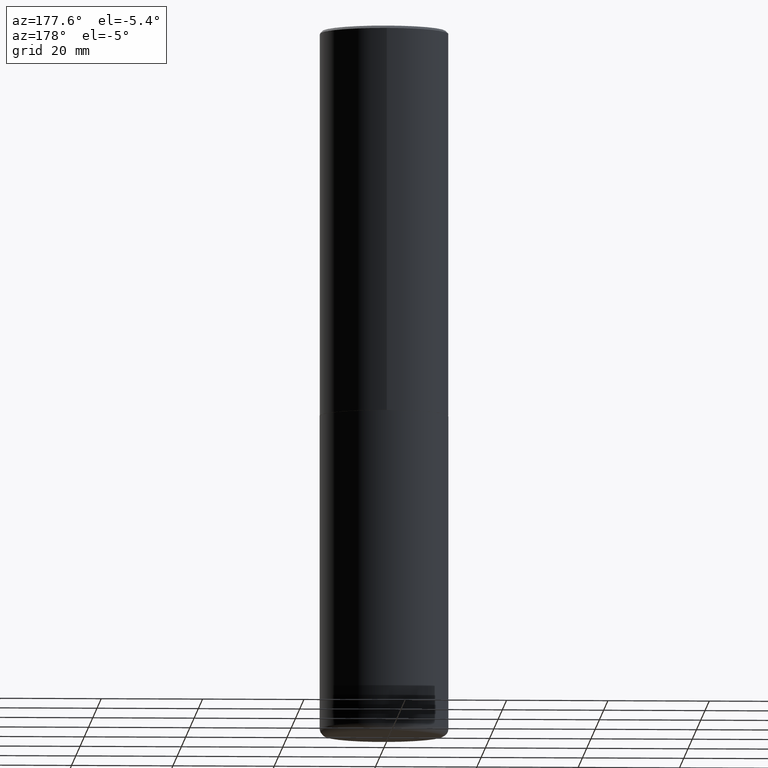
[diagram: clean part render]
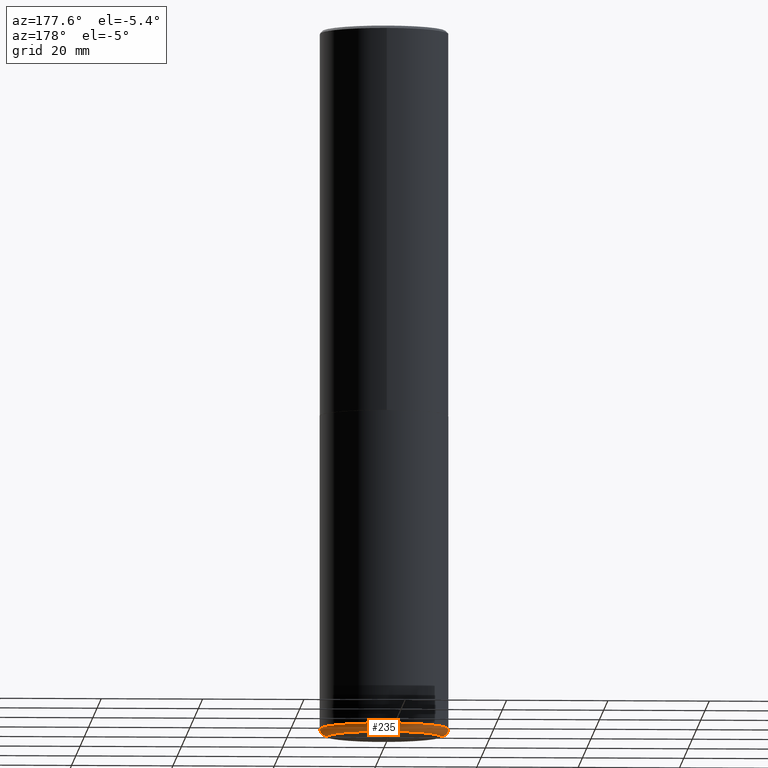
[diagram: same view with one face highlighted and labeled with its STEP entity id]
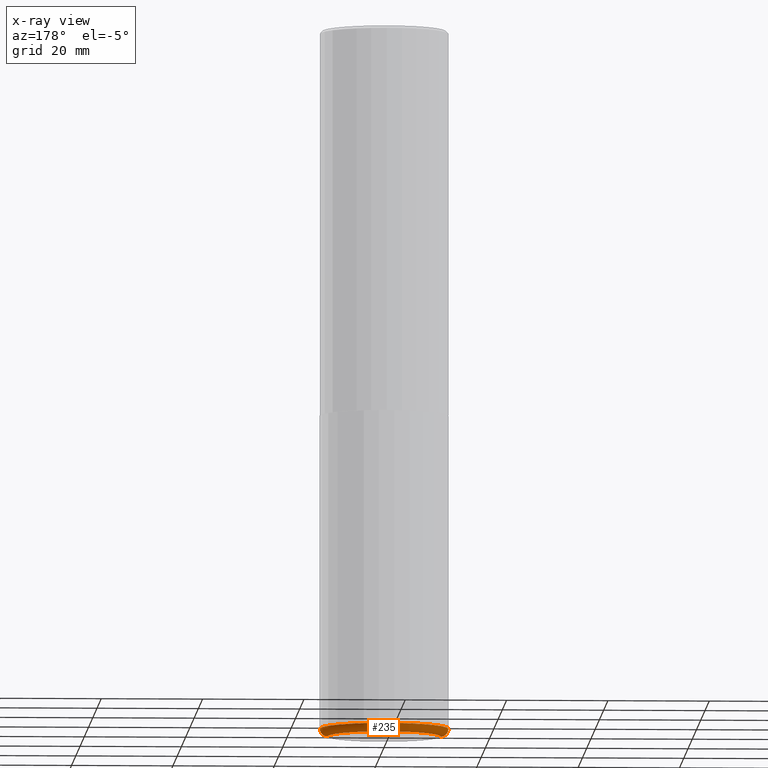
[diagram: x-ray of the same camera — body ghosted, the highlighted face saturated]
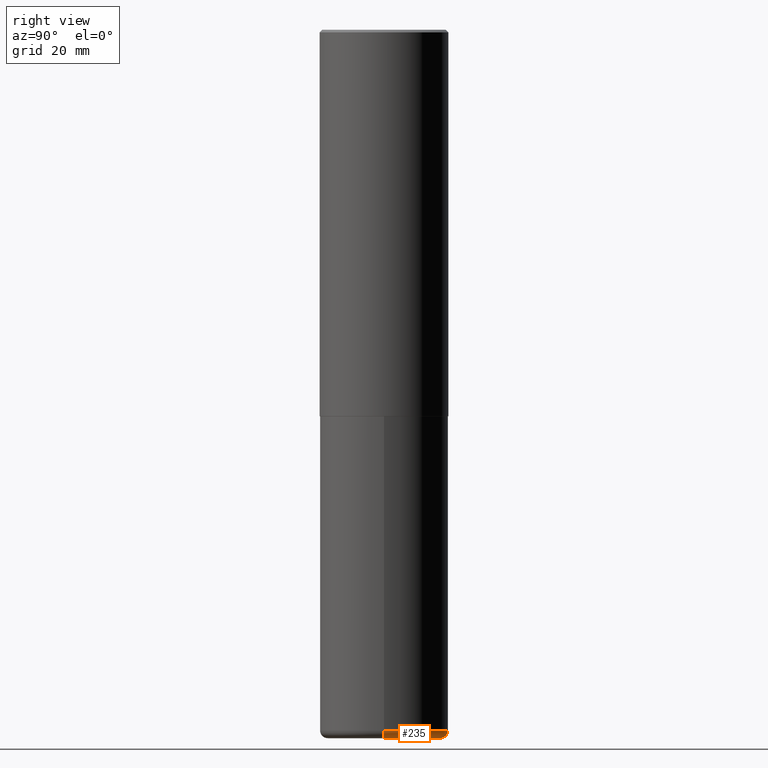
[diagram: same view with one face highlighted and labeled with its STEP entity id]
A machine part, auxiliary view. The second image highlights one B-rep face of the part: STEP entity #235.
The next image is the same camera in x-ray: the body ghosted, the highlighted face saturated — about 0% of this face is hidden behind the body in this view.
A second angle (right view) of the same face is appended — the face is thin or edge-on in the first view.
In plain terms, the highlighted toroidal blend (fillet) surface has major radius 11.176 mm and minor (blend) radius 1.524 mm.
Its self-contained STEP definition (entity closure, byte-faithful):
#6 = CIRCLE ( 'NONE', #68, 0.4400000000000000022 ) ;
#27 = EDGE_LOOP ( 'NONE', ( #90, #146, #282, #215 ) ) ;
#54 = AXIS2_PLACEMENT_3D ( 'NONE', #263, #170, #118 ) ;
#68 = AXIS2_PLACEMENT_3D ( 'NONE', #157, #251, #132 ) ;
#69 = TOROIDAL_SURFACE ( 'NONE', #391, 0.4400000000000000022, 0.06000000000000051820 ) ;
#83 = EDGE_CURVE ( 'NONE', #112, #336, #6, .T. ) ;
#86 = CARTESIAN_POINT ( 'NONE',  ( -0.4400000000000000022, -1.586727044596227254E-14, -5.439999999999999503 ) ) ;
#90 = ORIENTED_EDGE ( 'NONE', *, *, #83, .T. ) ;
#96 = CIRCLE ( 'NONE', #362, 0.06000000000000051820 ) ;
#105 = EDGE_CURVE ( 'NONE', #336, #370, #96, .T. ) ;
#109 = DIRECTION ( 'NONE',  ( -1.000000000000000000, 7.105427357600994759E-15, 0.000000000000000000 ) ) ;
#112 = VERTEX_POINT ( 'NONE', #338 ) ;
#118 = DIRECTION ( 'NONE',  ( 1.000000000000000000, -6.982962677686273021E-15, 0.000000000000000000 ) ) ;
#132 = DIRECTION ( 'NONE',  ( 1.000000000000000000, -6.982962677686270655E-15, 0.000000000000000000 ) ) ;
#142 = DIRECTION ( 'NONE',  ( 1.000000000000000000, -6.982962677686269077E-15, 0.000000000000000000 ) ) ;
#146 = ORIENTED_EDGE ( 'NONE', *, *, #105, .T. ) ;
#154 = CARTESIAN_POINT ( 'NONE',  ( 1.330335030564714425E-28, -1.899365848330671298E-14, -5.439999999999999503 ) ) ;
#157 = CARTESIAN_POINT ( 'NONE',  ( 1.345007843401825128E-28, -1.920314736363730603E-14, -5.500000000000000888 ) ) ;
#169 = CIRCLE ( 'NONE', #54, 0.06000000000000051820 ) ;
#170 = DIRECTION ( 'NONE',  ( -6.982962677686266711E-15, -1.000000000000000000, 3.491481338843145583E-15 ) ) ;
#179 = CARTESIAN_POINT ( 'NONE',  ( 1.330335030564714425E-28, -1.899365848330671298E-14, -5.439999999999999503 ) ) ;
#199 = CARTESIAN_POINT ( 'NONE',  ( 0.5000000000000002220, -2.248513982214985265E-14, -5.439999999999999503 ) ) ;
#212 = DIRECTION ( 'NONE',  ( 7.105427357601001859E-15, 1.000000000000000000, -3.491481338843145583E-15 ) ) ;
#213 = FACE_OUTER_BOUND ( 'NONE', #27, .T. ) ;
#215 = ORIENTED_EDGE ( 'NONE', *, *, #367, .F. ) ;
#235 = ADVANCED_FACE ( 'NONE', ( #213 ), #69, .T. ) ;
#251 = DIRECTION ( 'NONE',  ( -2.445468806185136597E-29, 3.491481338843145583E-15, 1.000000000000000000 ) ) ;
#263 = CARTESIAN_POINT ( 'NONE',  ( 0.4400000000000000022, -2.206616206148867286E-14, -5.439999999999999503 ) ) ;
#280 = CARTESIAN_POINT ( 'NONE',  ( -0.5000000000000002220, -1.544094480450621205E-14, -5.439999999999999503 ) ) ;
#282 = ORIENTED_EDGE ( 'NONE', *, *, #394, .F. ) ;
#299 = DIRECTION ( 'NONE',  ( -2.445468806185136597E-29, 3.491481338843145583E-15, 1.000000000000000000 ) ) ;
#324 = DIRECTION ( 'NONE',  ( 1.000000000000000000, -6.982962677686262766E-15, 4.883557194083111780E-29 ) ) ;
#326 = CIRCLE ( 'NONE', #384, 0.5000000000000001110 ) ;
#336 = VERTEX_POINT ( 'NONE', #388 ) ;
#338 = CARTESIAN_POINT ( 'NONE',  ( 0.4400000000000000022, -2.227565094181926275E-14, -5.500000000000000888 ) ) ;
#350 = VERTEX_POINT ( 'NONE', #199 ) ;
#362 = AXIS2_PLACEMENT_3D ( 'NONE', #86, #212, #109 ) ;
#367 = EDGE_CURVE ( 'NONE', #112, #350, #169, .T. ) ;
#370 = VERTEX_POINT ( 'NONE', #280 ) ;
#384 = AXIS2_PLACEMENT_3D ( 'NONE', #179, #299, #142 ) ;
#388 = CARTESIAN_POINT ( 'NONE',  ( -0.4400000000000000022, -1.575885206539953724E-14, -5.500000000000000888 ) ) ;
#391 = AXIS2_PLACEMENT_3D ( 'NONE', #154, #411, #324 ) ;
#394 = EDGE_CURVE ( 'NONE', #350, #370, #326, .T. ) ;
#411 = DIRECTION ( 'NONE',  ( -2.445468806185136597E-29, 3.491481338843145583E-15, 1.000000000000000000 ) ) ;